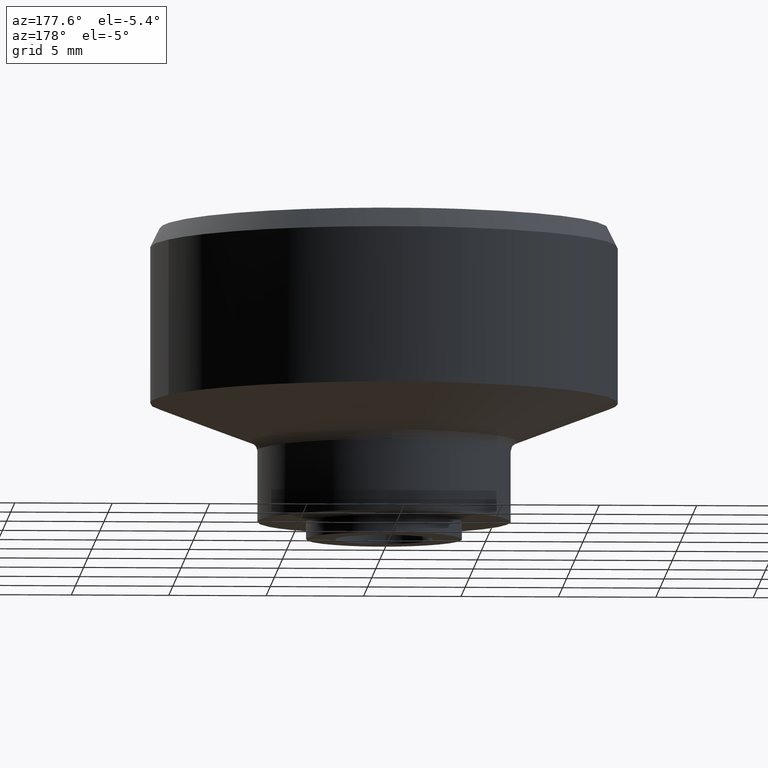
[diagram: clean part render]
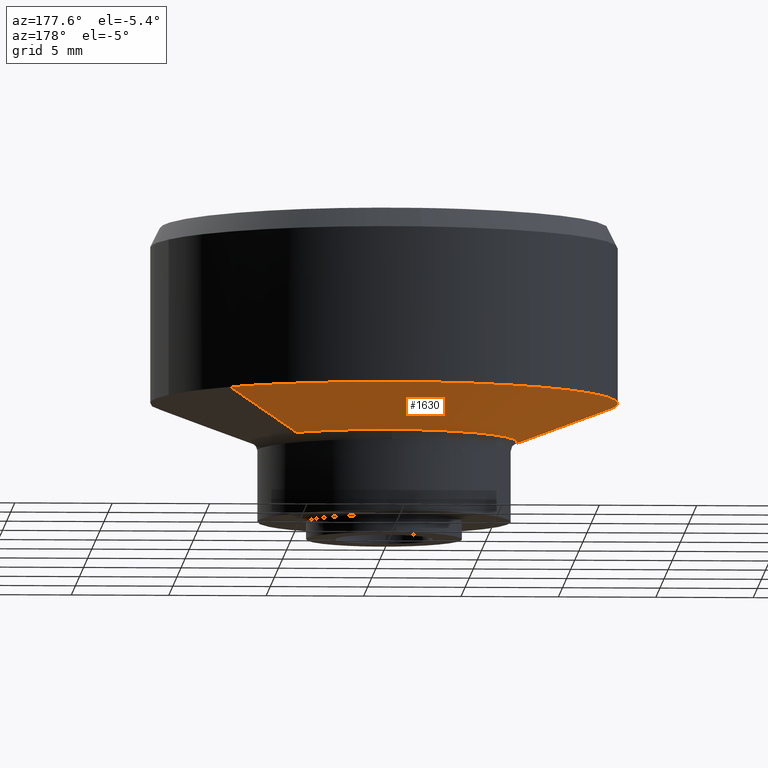
[diagram: same view with one face highlighted and labeled with its STEP entity id]
A machine part, auxiliary view. The second image highlights one B-rep face of the part: STEP entity #1630.
In plain terms, the highlighted face is a freeform B-spline surface patch.
Its self-contained STEP definition (entity closure, byte-faithful):
#1479=CARTESIAN_POINT('',(4.604857408637530,4.852507216975026,4.972407251594626));
#1480=CARTESIAN_POINT('',(-0.247649808337496,9.457364625612556,4.972407251594625));
#1481=CARTESIAN_POINT('',(-4.852507216975026,4.604857408637530,4.972407251594626));
#1482=CARTESIAN_POINT('',(-9.457364625612556,-0.247649808337496,4.972407251594625));
#1483=CARTESIAN_POINT('',(-4.604857408637530,-4.852507216975026,4.972407251594626));
#1484=CARTESIAN_POINT('',(0.247649808337496,-9.457364625612556,4.972407251594625));
#1485=CARTESIAN_POINT('',(4.852507216975026,-4.604857408637530,4.972407251594626));
#1486=CARTESIAN_POINT('',(8.351639845817232,8.800792083026764,7.050689818710238));
#1487=CARTESIAN_POINT('',(-0.449152237209532,17.152431928843992,7.050689818710238));
#1488=CARTESIAN_POINT('',(-8.800792083026764,8.351639845817232,7.050689818710238));
#1489=CARTESIAN_POINT('',(-17.152431928843992,-0.449152237209532,7.050689818710238));
#1490=CARTESIAN_POINT('',(-8.351639845817232,-8.800792083026764,7.050689818710238));
#1491=CARTESIAN_POINT('',(0.449152237209532,-17.152431928843992,7.050689818710238));
#1492=CARTESIAN_POINT('',(8.800792083026764,-8.351639845817232,7.050689818710238));
#1500=(BOUNDED_SURFACE()B_SPLINE_SURFACE(2,1,((#1479,#1486),(#1480,#1487),(#1481,#1488),(#1482,#1489),(#1483,#1490),(#1484,#1491),(#1485,#1492)),.UNSPECIFIED.,.F.,.F.,.U.)B_SPLINE_SURFACE_WITH_KNOTS((3,2,2,3),(2,2),(0.0,20.102212518637192,40.204425037274383,60.306637555911571),(0.0,5.826370263193725),.UNSPECIFIED.)GEOMETRIC_REPRESENTATION_ITEM()RATIONAL_B_SPLINE_SURFACE(((1.0,1.0),(0.707106781186548,0.707106781186548),(1.0,1.0),(0.707106781186548,0.707106781186548),(1.0,1.0),(0.707106781186548,0.707106781186548),(1.0,1.0)))REPRESENTATION_ITEM('')SURFACE());
#1501=CARTESIAN_POINT('',(-12.0,0.0,7.000000000000100));
#1502=VERTEX_POINT('',#1501);
#1503=CARTESIAN_POINT('',(8.260254908325692,8.704492452146848,7.000000000000102));
#1504=VERTEX_POINT('',#1503);
#1505=CARTESIAN_POINT('',(-12.0,0.0,7.000000000000100));
#1506=CARTESIAN_POINT('',(-12.0,12.0,7.000000000000100));
#1507=CARTESIAN_POINT('',(0.0,12.0,7.000000000000100));
#1508=CARTESIAN_POINT('',(4.787514551685657,11.999999999999996,7.000000000000100));
#1509=CARTESIAN_POINT('',(8.260254908325692,8.704492452146848,7.000000000000102));
#1517=(BOUNDED_CURVE()B_SPLINE_CURVE(2,(#1505,#1506,#1507,#1508,#1509),.UNSPECIFIED.,.F.,.U.)B_SPLINE_CURVE_WITH_KNOTS((3,2,3),(0.0,0.250000000000000,0.371049526659098),.UNSPECIFIED.)CURVE()GEOMETRIC_REPRESENTATION_ITEM()RATIONAL_B_SPLINE_CURVE((1.0,0.707106781186548,1.0,0.858181658003889,0.853699661369435))REPRESENTATION_ITEM(''));
#1518=EDGE_CURVE('',#1502,#1504,#1517,.T.);
#1519=ORIENTED_EDGE('',*,*,#1518,.T.);
#1520=CARTESIAN_POINT('',(4.694013445308190,4.946458076466367,5.021860733314310));
#1521=VERTEX_POINT('',#1520);
#1522=CARTESIAN_POINT('',(4.694013445308190,4.946458076466367,5.021860733314310));
#1523=CARTESIAN_POINT('',(8.260254908325692,8.704492452146848,7.000000000000102));
#1524=QUASI_UNIFORM_CURVE('',1,(#1522,#1523),.UNSPECIFIED.,.F.,.U.);
#1525=EDGE_CURVE('',#1521,#1504,#1524,.T.);
#1526=ORIENTED_EDGE('',*,*,#1525,.F.);
#1527=CARTESIAN_POINT('',(-0.133131990237946,6.817879846350895,5.021860733289540));
#1528=VERTEX_POINT('',#1527);
#1529=CARTESIAN_POINT('',(-0.133131990237946,6.817879846350895,5.021860733289540));
#1530=CARTESIAN_POINT('',(-0.066572339312541,6.819179549401332,5.021860733314311));
#1531=CARTESIAN_POINT('',(0.0,6.819179549401331,5.021860733314310));
#1532=CARTESIAN_POINT('',(2.720576776943253,6.819179549401333,5.021860733314311));
#1533=CARTESIAN_POINT('',(4.694013445308190,4.946458076466367,5.021860733314310));
#1541=(BOUNDED_CURVE()B_SPLINE_CURVE(2,(#1529,#1530,#1531,#1532,#1533),.UNSPECIFIED.,.F.,.U.)B_SPLINE_CURVE_WITH_KNOTS((3,2,3),(0.246562331022120,0.250000000000000,0.371049526659107),.UNSPECIFIED.)CURVE()GEOMETRIC_REPRESENTATION_ITEM()RATIONAL_B_SPLINE_CURVE((0.992055801679805,0.995972520271415,1.0,0.858181658003877,0.853699661369435))REPRESENTATION_ITEM(''));
#1542=EDGE_CURVE('',#1528,#1521,#1541,.T.);
#1543=ORIENTED_EDGE('',*,*,#1542,.F.);
#1544=CARTESIAN_POINT('',(-6.819179549401331,0.0,5.021860733314310));
#1545=VERTEX_POINT('',#1544);
#1546=CARTESIAN_POINT('',(-6.819179549401331,0.0,5.021860733314310));
#1547=CARTESIAN_POINT('',(-6.819179549401332,6.687322130739482,5.021860733314310));
#1548=CARTESIAN_POINT('',(-0.133131990237946,6.817879846350895,5.021860733289540));
#1556=(BOUNDED_CURVE()B_SPLINE_CURVE(2,(#1546,#1547,#1548),.UNSPECIFIED.,.F.,.U.)B_SPLINE_CURVE_WITH_KNOTS((3,3),(0.0,0.246562331022120),.UNSPECIFIED.)CURVE()GEOMETRIC_REPRESENTATION_ITEM()RATIONAL_B_SPLINE_CURVE((1.0,0.711134260915133,0.992055801679806))REPRESENTATION_ITEM(''));
#1557=EDGE_CURVE('',#1545,#1528,#1556,.T.);
#1558=ORIENTED_EDGE('',*,*,#1557,.F.);
#1559=CARTESIAN_POINT('',(-0.257016122897381,-6.814334335629706,5.021860733263052));
#1560=VERTEX_POINT('',#1559);
#1561=CARTESIAN_POINT('',(-0.257016122897381,-6.814334335629706,5.021860733263052));
#1562=CARTESIAN_POINT('',(-6.819179549401332,-6.566829338384044,5.021860733314309));
#1563=CARTESIAN_POINT('',(-6.819179549401331,0.0,5.021860733314310));
#1571=(BOUNDED_CURVE()B_SPLINE_CURVE(2,(#1561,#1562,#1563),.UNSPECIFIED.,.F.,.U.)B_SPLINE_CURVE_WITH_KNOTS((3,3),(0.756613471418681,1.0),.UNSPECIFIED.)CURVE()GEOMETRIC_REPRESENTATION_ITEM()RATIONAL_B_SPLINE_CURVE((0.984913610623975,0.714854944911941,1.0))REPRESENTATION_ITEM(''));
#1572=EDGE_CURVE('',#1560,#1545,#1571,.T.);
#1573=ORIENTED_EDGE('',*,*,#1572,.F.);
#1574=CARTESIAN_POINT('',(4.946458076466366,-4.694013445308192,5.021860733314311));
#1575=VERTEX_POINT('',#1574);
#1576=CARTESIAN_POINT('',(4.946458076466366,-4.694013445308192,5.021860733314311));
#1577=CARTESIAN_POINT('',(2.929750745297628,-6.819179549401331,5.021860733314311));
#1578=CARTESIAN_POINT('',(0.0,-6.819179549401331,5.021860733314310));
#1579=CARTESIAN_POINT('',(-0.128553731936213,-6.819179549401330,5.021860733314310));
#1580=CARTESIAN_POINT('',(-0.257016122897381,-6.814334335629706,5.021860733263052));
#1588=(BOUNDED_CURVE()B_SPLINE_CURVE(2,(#1576,#1577,#1578,#1579,#1580),.UNSPECIFIED.,.F.,.U.)B_SPLINE_CURVE_WITH_KNOTS((3,2,3),(0.621049526659106,0.750000000000000,0.756613471418681),.UNSPECIFIED.)CURVE()GEOMETRIC_REPRESENTATION_ITEM()RATIONAL_B_SPLINE_CURVE((0.853699661369435,0.848925123182670,1.0,0.992251836274607,0.984913610623976))REPRESENTATION_ITEM(''));
#1589=EDGE_CURVE('',#1575,#1560,#1588,.T.);
#1590=ORIENTED_EDGE('',*,*,#1589,.F.);
#1591=CARTESIAN_POINT('',(8.704492452146841,-8.260254908325699,7.000000000000102));
#1592=VERTEX_POINT('',#1591);
#1593=CARTESIAN_POINT('',(4.946458076466366,-4.694013445308192,5.021860733314311));
#1594=CARTESIAN_POINT('',(8.704492452146841,-8.260254908325699,7.000000000000102));
#1595=QUASI_UNIFORM_CURVE('',1,(#1593,#1594),.UNSPECIFIED.,.F.,.U.);
#1596=EDGE_CURVE('',#1575,#1592,#1595,.T.);
#1597=ORIENTED_EDGE('',*,*,#1596,.T.);
#1598=CARTESIAN_POINT('',(0.732574907563961,-11.977618043866240,7.000000000000100));
#1599=VERTEX_POINT('',#1598);
#1600=CARTESIAN_POINT('',(8.704492452146841,-8.260254908325699,7.000000000000102));
#1601=CARTESIAN_POINT('',(5.450688498442415,-11.689048846299009,7.000000000000100));
#1602=CARTESIAN_POINT('',(0.732574907563961,-11.977618043866238,7.000000000000100));
#1610=(BOUNDED_CURVE()B_SPLINE_CURVE(2,(#1600,#1601,#1602),.UNSPECIFIED.,.F.,.U.)B_SPLINE_CURVE_WITH_KNOTS((3,3),(0.621049526659098,0.739333071248331),.UNSPECIFIED.)CURVE()GEOMETRIC_REPRESENTATION_ITEM()RATIONAL_B_SPLINE_CURVE((0.853699661369435,0.849320078372361,0.976072275294699))REPRESENTATION_ITEM(''));
#1611=EDGE_CURVE('',#1592,#1599,#1610,.T.);
#1612=ORIENTED_EDGE('',*,*,#1611,.T.);
#1613=CARTESIAN_POINT('',(0.732574907563961,-11.977618043866238,7.000000000000100));
#1614=CARTESIAN_POINT('',(0.366629365547725,-12.000000000000002,7.000000000000100));
#1615=CARTESIAN_POINT('',(0.0,-12.0,7.000000000000100));
#1616=CARTESIAN_POINT('',(-12.0,-12.0,7.000000000000100));
#1617=CARTESIAN_POINT('',(-12.0,0.0,7.000000000000100));
#1625=(BOUNDED_CURVE()B_SPLINE_CURVE(2,(#1613,#1614,#1615,#1616,#1617),.UNSPECIFIED.,.F.,.U.)B_SPLINE_CURVE_WITH_KNOTS((3,2,3),(0.739333071248331,0.750000000000000,1.0),.UNSPECIFIED.)CURVE()GEOMETRIC_REPRESENTATION_ITEM()RATIONAL_B_SPLINE_CURVE((0.976072275294699,0.987502915612280,1.0,0.707106781186548,1.0))REPRESENTATION_ITEM(''));
#1626=EDGE_CURVE('',#1599,#1502,#1625,.T.);
#1627=ORIENTED_EDGE('',*,*,#1626,.T.);
#1628=EDGE_LOOP('',(#1519,#1526,#1543,#1558,#1573,#1590,#1597,#1612,#1627));
#1629=FACE_OUTER_BOUND('',#1628,.T.);
#1630=ADVANCED_FACE('',(#1629),#1500,.T.);